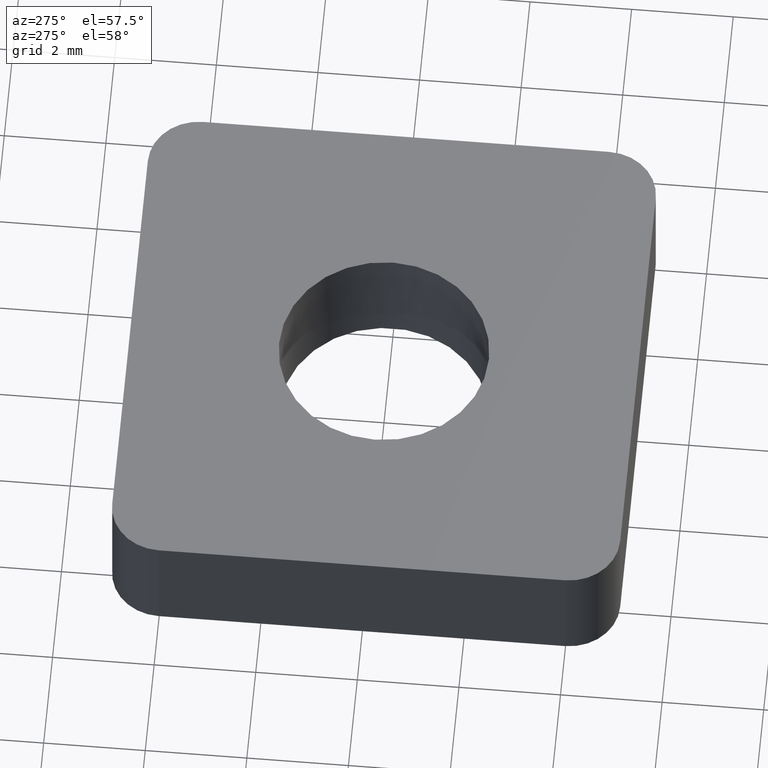
[diagram: clean part render]
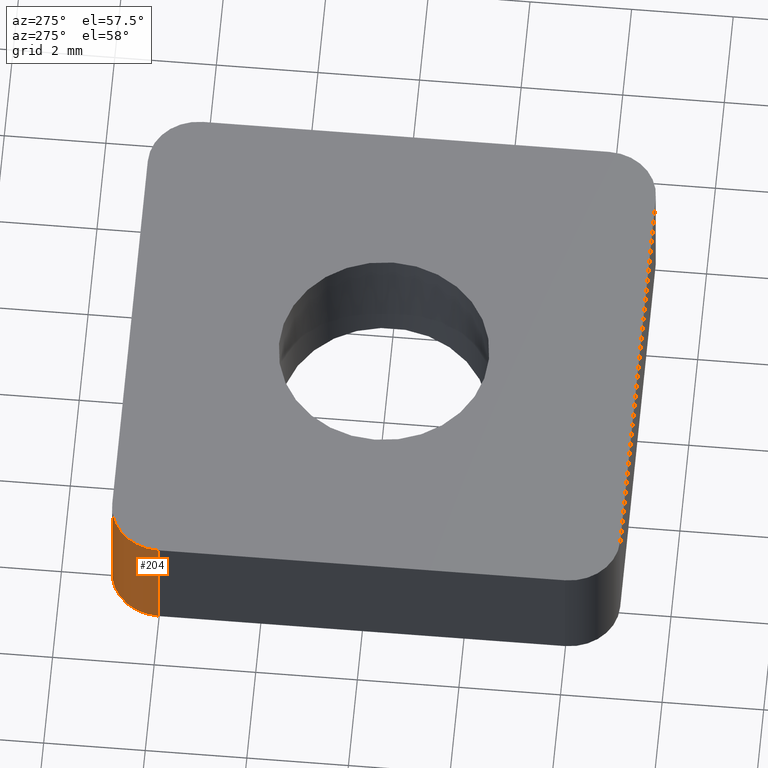
[diagram: same view with one face highlighted and labeled with its STEP entity id]
A machine part, auxiliary view. The second image highlights one B-rep face of the part: STEP entity #204.
In plain terms, the highlighted cylindrical surface (partial cylindrical patch) has radius 1 mm, axis along (0, 0, 1).
Its self-contained STEP definition (entity closure, byte-faithful):
#27=FACE_OUTER_BOUND('',#39,.T.);
#39=EDGE_LOOP('',(#161,#162,#163,#164));
#56=LINE('',#356,#73);
#57=LINE('',#357,#74);
#73=VECTOR('',#292,10.);
#74=VECTOR('',#293,10.);
#86=CIRCLE('',#240,1.);
#89=CIRCLE('',#244,1.);
#101=VERTEX_POINT('',#341);
#102=VERTEX_POINT('',#343);
#106=VERTEX_POINT('',#353);
#107=VERTEX_POINT('',#354);
#123=EDGE_CURVE('',#102,#101,#86,.T.);
#128=EDGE_CURVE('',#106,#107,#89,.T.);
#129=EDGE_CURVE('',#107,#102,#56,.T.);
#130=EDGE_CURVE('',#101,#106,#57,.T.);
#161=ORIENTED_EDGE('',*,*,#128,.T.);
#162=ORIENTED_EDGE('',*,*,#129,.T.);
#163=ORIENTED_EDGE('',*,*,#123,.T.);
#164=ORIENTED_EDGE('',*,*,#130,.T.);
#197=CYLINDRICAL_SURFACE('',#243,1.);
#204=ADVANCED_FACE('',(#27),#197,.T.);
#240=AXIS2_PLACEMENT_3D('',#344,#280,#281);
#243=AXIS2_PLACEMENT_3D('',#352,#288,#289);
#244=AXIS2_PLACEMENT_3D('',#355,#290,#291);
#280=DIRECTION('center_axis',(0.,0.,1.));
#281=DIRECTION('ref_axis',(-0.707106781186548,0.707106781186547,0.));
#288=DIRECTION('center_axis',(0.,0.,1.));
#289=DIRECTION('ref_axis',(-0.707106781186548,0.707106781186547,0.));
#290=DIRECTION('center_axis',(0.,0.,-1.));
#291=DIRECTION('ref_axis',(-0.707106781186548,0.707106781186547,0.));
#292=DIRECTION('',(0.,0.,-1.));
#293=DIRECTION('',(0.,0.,1.));
#341=CARTESIAN_POINT('',(-5.,4.,-2.4));
#343=CARTESIAN_POINT('',(-4.,5.,-2.4));
#344=CARTESIAN_POINT('Origin',(-4.,4.,-2.4));
#352=CARTESIAN_POINT('Origin',(-4.,4.,0.));
#353=CARTESIAN_POINT('',(-5.,4.,0.));
#354=CARTESIAN_POINT('',(-4.,5.,0.));
#355=CARTESIAN_POINT('Origin',(-4.,4.,0.));
#356=CARTESIAN_POINT('',(-4.,5.,0.));
#357=CARTESIAN_POINT('',(-5.,4.,0.));